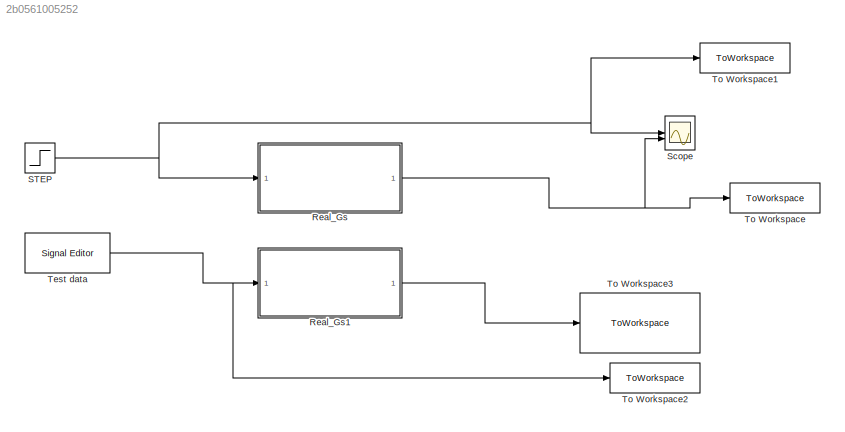
MODEL slx_2b0561005252
KIND model
CONFIG AbsTol = auto
CONFIG EnableMultiTasking = off
CONFIG FixedStep = 0.01
CONFIG MaxStep = auto
CONFIG MinStep = auto
CONFIG RelTol = 1e-3
CONFIG SampleTimeConstraint = Unconstrained
CONFIG SolverName = FixedStepAuto
CONFIG StartTime = 0.0
CONFIG StopTime = 20.0
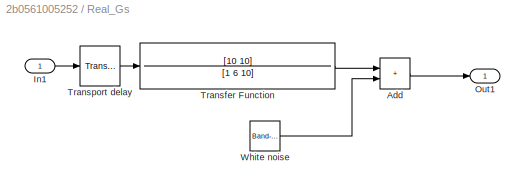
BLOCK [SubSystem] Real_Gs
BLOCK [Sum] Real_Gs/Add
  IconShape = rectangular
BLOCK [Inport] Real_Gs/In1
BLOCK [Outport] Real_Gs/Out1
BLOCK [TransferFcn] Real_Gs/Transfer Function
  Denominator = [1 6 10]
  Numerator = [10 10]
BLOCK [TransportDelay] Real_Gs/Transport  delay
  DelayTime = 2
BLOCK [Reference] Real_Gs/White noise  REF=simulink/Sources/Band-Limited
White Noise
  SourceBlock = simulink/Sources/Band-Limited\nWhite Noise
  SourceType = Band-Limited White Noise.
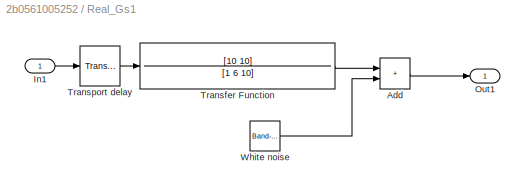
BLOCK [SubSystem] Real_Gs1
BLOCK [Sum] Real_Gs1/Add
  IconShape = rectangular
BLOCK [Inport] Real_Gs1/In1
BLOCK [Outport] Real_Gs1/Out1
BLOCK [TransferFcn] Real_Gs1/Transfer Function
  Denominator = [1 6 10]
  Numerator = [10 10]
BLOCK [TransportDelay] Real_Gs1/Transport  delay
  DelayTime = 2
BLOCK [Reference] Real_Gs1/White noise  REF=simulink/Sources/Band-Limited
White Noise
  SourceBlock = simulink/Sources/Band-Limited\nWhite Noise
  SourceType = Band-Limited White Noise.
BLOCK [Step] STEP
  SampleTime = 0
BLOCK [Scope] Scope
  Floating = off
  NumInputPorts = 3
  ScopeSpecificationString = Simulink.scopes.TimeScopeBlockCfg('CurrentConfiguration', extmgr.ConfigurationSet(extmgr.Configuration('Core','General UI',true),extmgr.Configuration('Core','Source UI',true),extmgr.Configuration('Sources','WiredSimulink',true),extmgr.Configuration('Visuals','Time Domain',true,'SerializedDisplays',{struct('MinYLimReal','-0.31443','MaxYLimReal','1.80831','YLabelReal','','MinYLimMag','0.00000','MaxY...<+1464ch>
BLOCK [Reference] Test data  REF=SignalEditorBlockLib/Signal Editor
  LibrarySourceBlock = simulink/Sources/Signal Editor
  SourceBlock = SignalEditorBlockLib/Signal Editor
  SourceType = SignalEditor
  UserDataPersistent = on
BLOCK [ToWorkspace] To Workspace
  FixptAsFi = on
  MaxDataPoints = inf
  SampleTime = -1
  SaveFormat = Timeseries
  VariableName = Real_Y
BLOCK [ToWorkspace] To Workspace1
  FixptAsFi = on
  MaxDataPoints = inf
  SampleTime = -1
  SaveFormat = Timeseries
  VariableName = U
BLOCK [ToWorkspace] To Workspace2
  FixptAsFi = on
  MaxDataPoints = inf
  SampleTime = -1
  SaveFormat = Timeseries
  VariableName = U_validation
BLOCK [ToWorkspace] To Workspace3
  FixptAsFi = on
  MaxDataPoints = inf
  SampleTime = -1
  SaveFormat = Timeseries
  VariableName = Real_Y_validation
LINE Real_Gs/Add:1 -> Real_Gs/Out1:1
LINE Real_Gs/In1:1 -> Real_Gs/Transport  delay:1
LINE Real_Gs/Transfer Function:1 -> Real_Gs/Add:1
LINE Real_Gs/Transport  delay:1 -> Real_Gs/Transfer Function:1
LINE Real_Gs/White noise:1 -> Real_Gs/Add:2
LINE Real_Gs1/Add:1 -> Real_Gs1/Out1:1
LINE Real_Gs1/In1:1 -> Real_Gs1/Transport  delay:1
LINE Real_Gs1/Transfer Function:1 -> Real_Gs1/Add:1
LINE Real_Gs1/Transport  delay:1 -> Real_Gs1/Transfer Function:1
LINE Real_Gs1/White noise:1 -> Real_Gs1/Add:2
LINE Real_Gs1:1 -> To Workspace3:1
NET Real_Gs:1 -> Scope:2, To Workspace:1
NET STEP:1 -> Real_Gs:1, Scope:1, To Workspace1:1
NET Test data:1 -> Real_Gs1:1, To Workspace2:1
note: NET lines group one-source signal fan-out (src -> all destinations, sorted); 1:1 wires keep LINE
